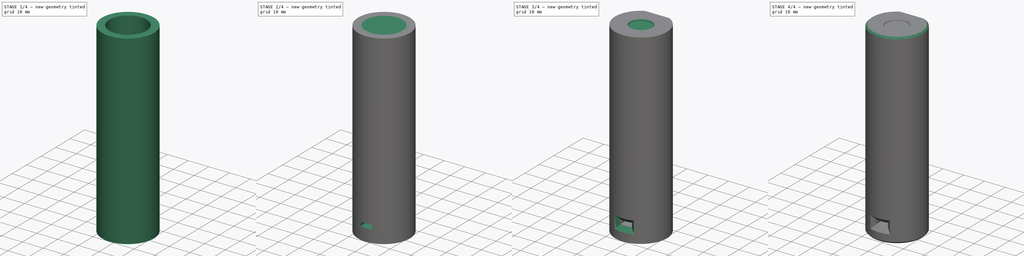
[diagram: build sequence overview — one tinted view per stage of 4, left to right]
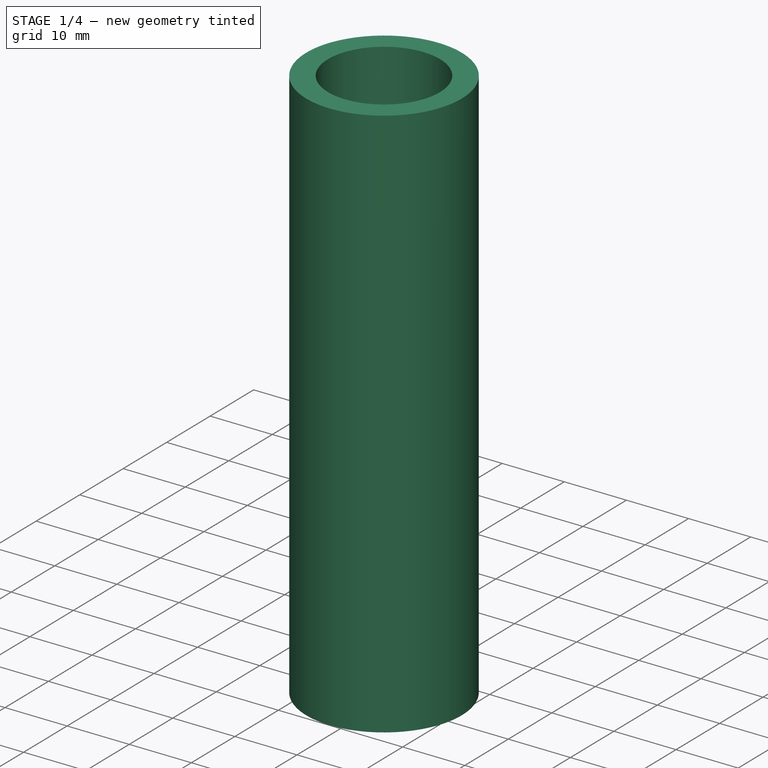
[diagram: stage 1 of 4 — iso view after this stage's code; geometry added in this stage tinted green]
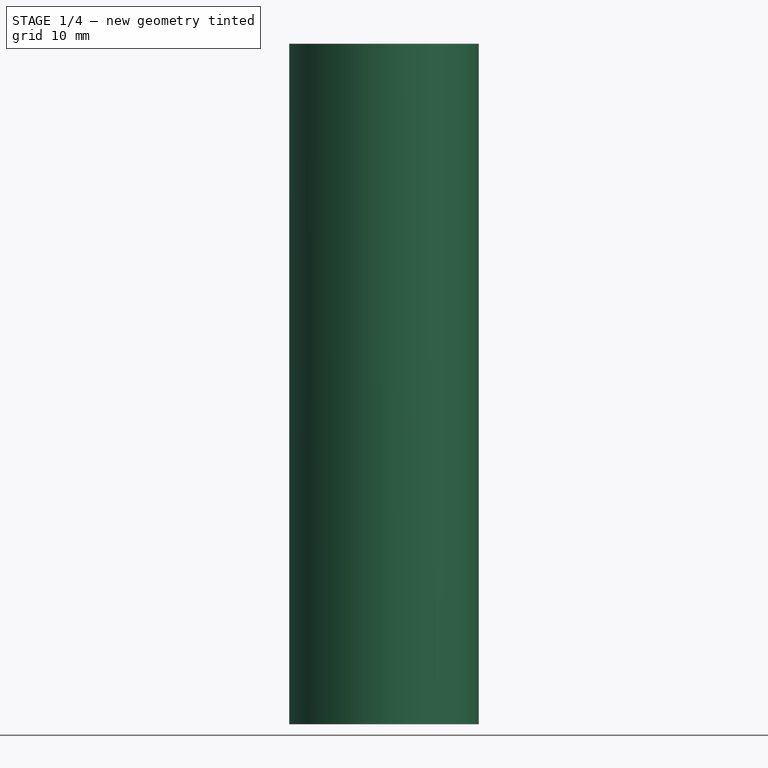
[diagram: stage 1 of 4 — front view after this stage's code; geometry added in this stage tinted green]
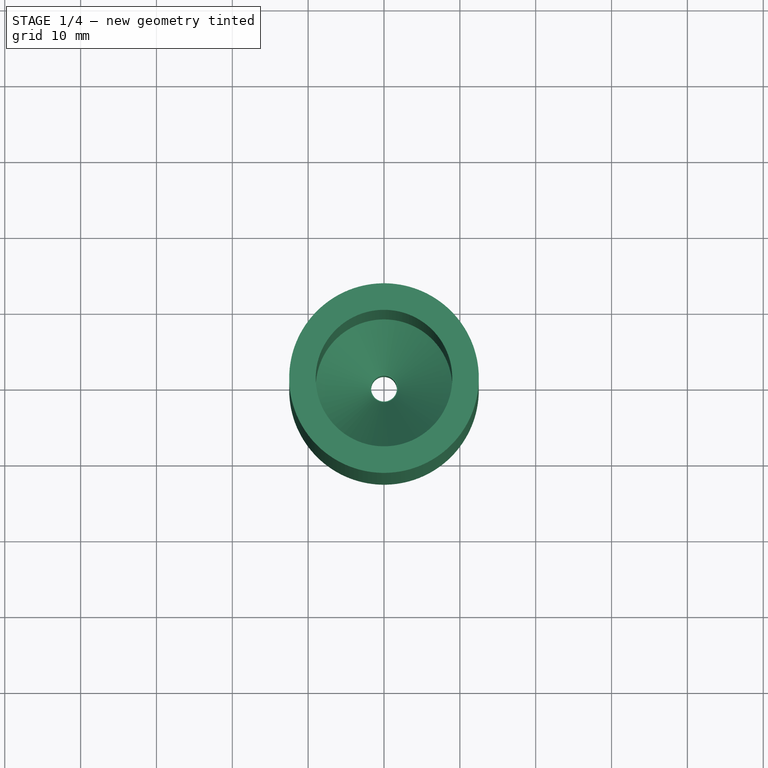
[diagram: stage 1 of 4 — top view after this stage's code; geometry added in this stage tinted green]
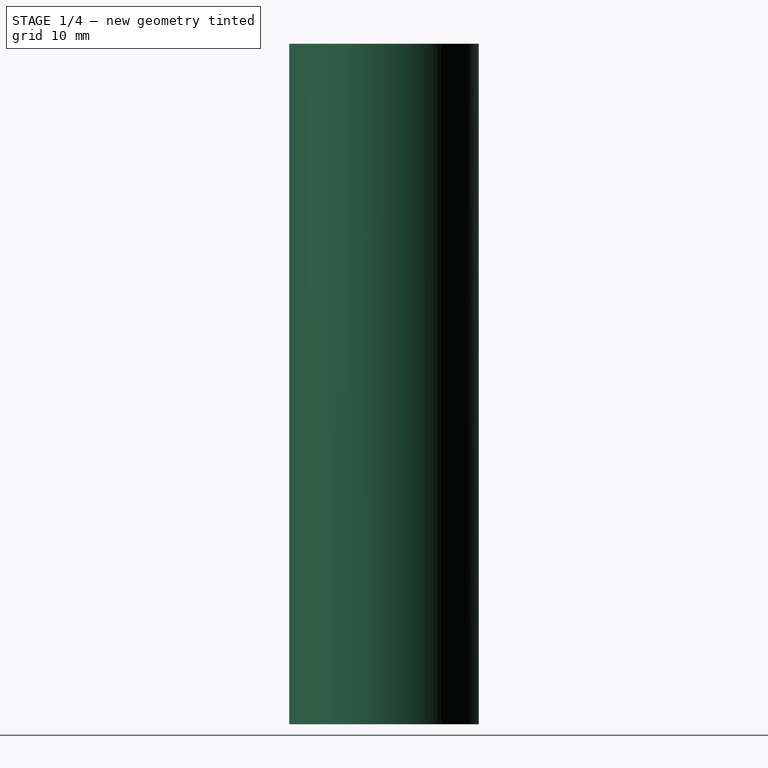
[diagram: stage 1 of 4 — right view after this stage's code; geometry added in this stage tinted green]
FCSTD DOCUMENT  (FreeCAD 0.20R29603 (Git))
Label: aux-staging-plate-foot
License: All rights reserved
LicenseURL: http://en.wikipedia.org/wiki/All_rights_reserved
objects: Sketcher::SketchObject×6, PartDesign::Chamfer×4, PartDesign::Pocket×4, PartDesign::Pad×3, PartDesign::Plane×2, PartDesign::Fillet×1, PartDesign::Hole×1, PartDesign::Body×1
note: 35 computed .brp shape members not serialized (recipe doc carries the construction recipe); baked Part::Feature solids carry a one-line shape summary decoded from their .brp

FEATURE [Sketcher::SketchObject] Sketch
  FullyConstrained = true
  MapMode = 5
  Support = -> [XY_Plane]
  sketch-geometry (2):
    g0: Circle CenterX=0 CenterY=0 CenterZ=0 NormalX=0 NormalY=0 NormalZ=1 AngleXU=0 Radius=12.5
    g1: Circle CenterX=0 CenterY=0 CenterZ=0 NormalX=0 NormalY=0 NormalZ=1 AngleXU=0 Radius=9
  constraints (4):
    c: Coincident(g0,g-1)
    c: Coincident(g1,g0)
    c: Diameter(g0) = 25
    c: Diameter(g1) = 18
FEATURE [PartDesign::Pad] Pad
  Direction = (1,1,1)
  Length = 89.72
  Length2 = 100
  Profile = -> Sketch
  Type = 0
FEATURE [Sketcher::SketchObject] Sketch001
  FullyConstrained = true
  MapMode = 5
  Support = -> [XY_Plane]
  sketch-geometry (2):
    g0: Circle CenterX=0 CenterY=0 CenterZ=0 NormalX=0 NormalY=0 NormalZ=1 AngleXU=0 Radius=1.7
    g1: Circle CenterX=0 CenterY=0 CenterZ=0 NormalX=0 NormalY=0 NormalZ=1 AngleXU=0 Radius=9
  constraints (4):
    c: Coincident(g0,g-1)
    c: Coincident(g1,g0)
    c: Diameter(g0) = 3.4
    c: Diameter(g1) = 18
FEATURE [PartDesign::Pad] Pad001
  BaseFeature = -> Pad
  Direction = (1,1,1)
  Length = 10
  Length2 = 100
  Profile = -> Sketch001
  Type = 0
FEATURE [PartDesign::Plane] DatumPlane
  AttachmentOffset = pos=(0,0,8) rot=(0,0,1;0rad)
  Length = 60
  MapMode = 5
  Placement = pos=(0,0,8) rot=(0,0,1;0rad)
  ResizeMode = 0
  Support = -> [XY_Plane]
  Width = 60
FEATURE [PartDesign::Chamfer] Chamfer
  Angle = 45
  Base = -> Pad001 [Edge7]
  BaseFeature = -> Pad001
  ChamferType = 0
  FlipDirection = false
  Size = 7.2
  Size2 = 1
  SupportTransform = false
  UseAllEdges = false
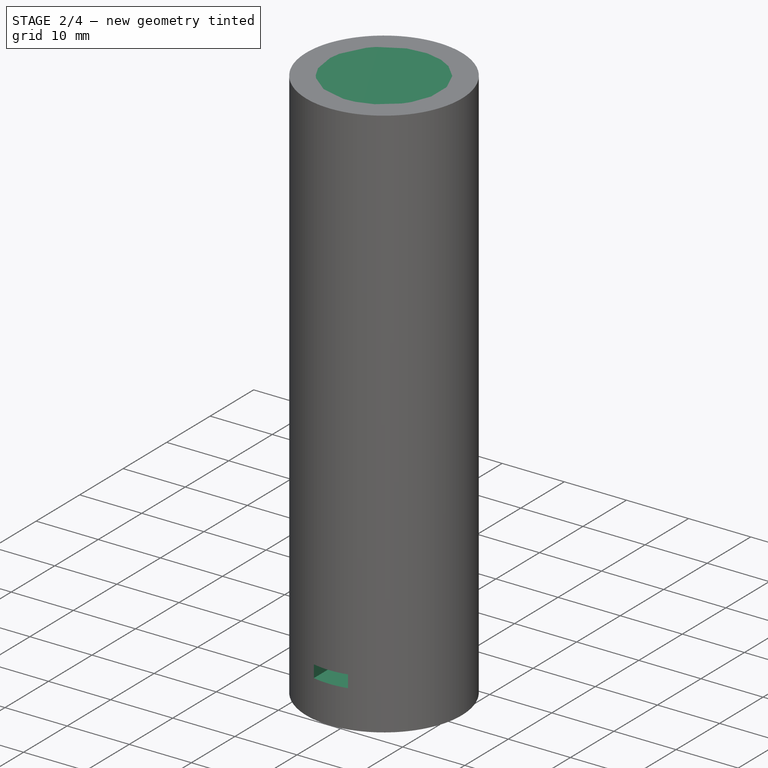
[diagram: stage 2 of 4 — iso view after this stage's code; geometry added in this stage tinted green]
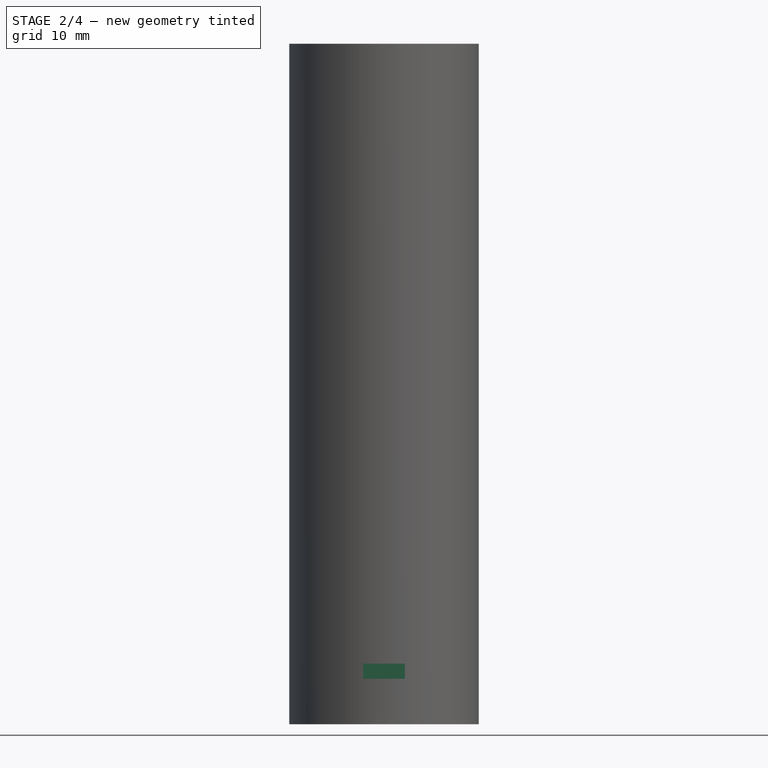
[diagram: stage 2 of 4 — front view after this stage's code; geometry added in this stage tinted green]
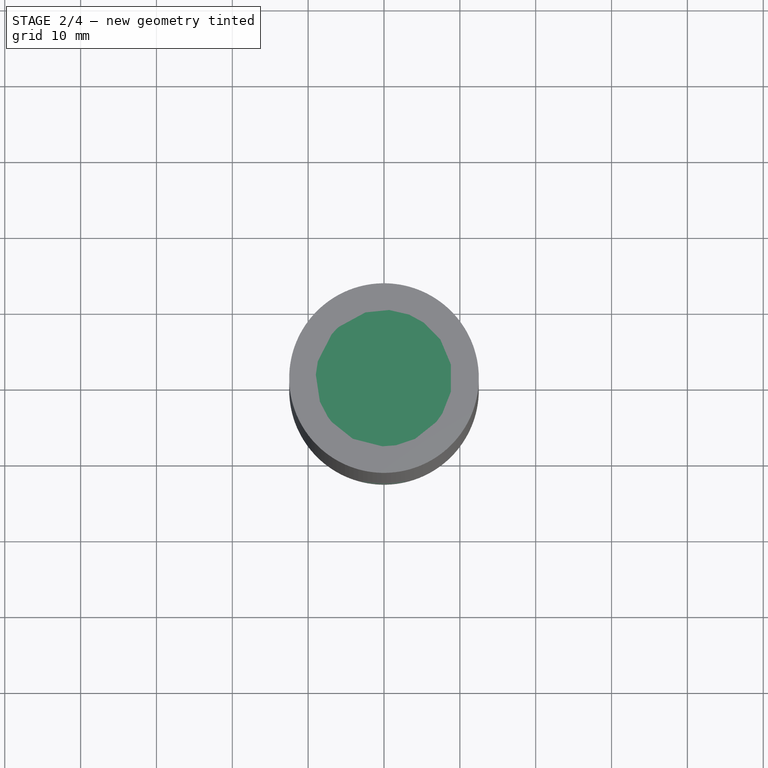
[diagram: stage 2 of 4 — top view after this stage's code; geometry added in this stage tinted green]
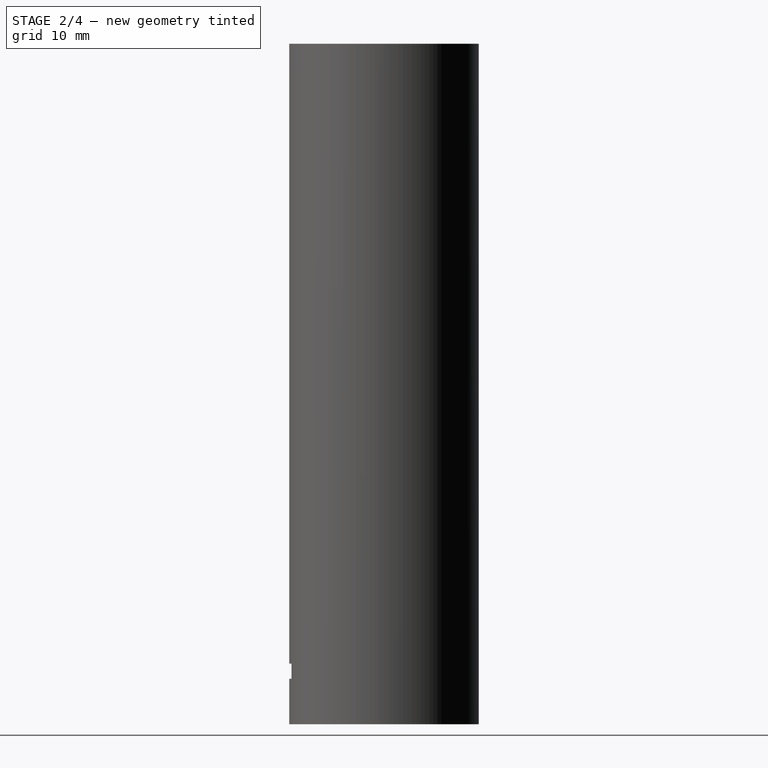
[diagram: stage 2 of 4 — right view after this stage's code; geometry added in this stage tinted green]
FEATURE [Sketcher::SketchObject] Sketch002
  FullyConstrained = true
  MapMode = 5
  Placement = pos=(0,0,8) rot=(0,0,1;0rad)
  Support = -> [DatumPlane]
  sketch-geometry (12):
    g0: LineSegment StartX=1.61658 StartY=2.8 StartZ=0 EndX=-1.61658 EndY=2.8 EndZ=0
    g1: LineSegment StartX=-1.61658 StartY=2.8 StartZ=0 EndX=-3.23316 EndY=4e-16 EndZ=0
    g2: LineSegment StartX=-3.23316 StartY=4e-16 StartZ=0 EndX=-1.61658 EndY=-2.8 EndZ=0
    g3: LineSegment StartX=-1.61658 StartY=-2.8 StartZ=0 EndX=1.61658 EndY=-2.8 EndZ=0
    g4: LineSegment StartX=1.61658 StartY=-2.8 StartZ=0 EndX=3.23316 EndY=0 EndZ=0
    g5: LineSegment StartX=3.23316 StartY=-2e-16 StartZ=0 EndX=1.61658 EndY=2.8 EndZ=0
    g6: Circle CenterX=0 CenterY=0 CenterZ=0 NormalX=0 NormalY=0 NormalZ=1 AngleXU=0 Radius=3.23316
    g7: LineSegment StartX=2.75 StartY=2.8 StartZ=0 EndX=2.75 EndY=-22.2 EndZ=0
    g8: LineSegment StartX=2.75 StartY=-22.2 StartZ=0 EndX=-2.75 EndY=-22.2 EndZ=0
    g9: LineSegment StartX=-2.75 StartY=-22.2 StartZ=0 EndX=-2.75 EndY=2.8 EndZ=0
    g10: LineSegment StartX=-2.75 StartY=2.8 StartZ=0 EndX=2.75 EndY=2.8 EndZ=0
    g11: GeomPoint X=0 Y=-9.7 Z=0
  constraints (29):
    c: Coincident(g0,g1)
    c: Coincident(g1,g2)
    c: Coincident(g2,g3)
    c: Coincident(g3,g4)
    c: Coincident(g4,g5)
    c: Coincident(g5,g0)
    c: Equal(g0, g1-g5) x5
    c: PointOnObject(g0,g6)
    c: PointOnObject(g1,g6)
    c: PointOnObject(g2,g6)
    c: PointOnObject(g3,g6)
    c: PointOnObject(g4,g6)
    c: PointOnObject(g5,g6)
    c: Coincident(g6,g-1)
    c: Horizontal(g0)
    c: DistanceY(g2,g0) = 5.6
    c: Coincident(g7,g8)
    c: Coincident(g8,g9)
    c: Coincident(g9,g10)
    c: Coincident(g10,g7)
    c: Horizontal(g8)
    c: Horizontal(g10)
    c: Vertical(g7)
    c: Vertical(g9)
    c: Symmetric(g8,g7,g11)
    c: PointOnObject(g11,g-2)
    c: DistanceX(g10,g10) = 5.5
    c: PointOnObject(g7,g0)
    c: DistanceY(g7,g7) = 25
FEATURE [PartDesign::Pocket] Pocket
  BaseFeature = -> Chamfer
  Direction = (0,0,-1)
  Length = 2
  Length2 = 1
  Profile = -> Sketch002
  ReferenceAxis = -> Sketch002 [N_Axis]
  Type = 0
FEATURE [PartDesign::Pad] Pad002
  BaseFeature = -> Pocket
  Direction = (0,0,1)
  Length = 5
  Length2 = 10
  Profile = -> Pocket [Edge3]
  Reversed = true
  Type = 0
FEATURE [PartDesign::Chamfer] Chamfer001
  Angle = 45
  Base = -> Pad002 [Edge3]
  BaseFeature = -> Pad002
  ChamferType = 0
  FlipDirection = false
  Size = 9
  Size2 = 1
  SupportTransform = false
  UseAllEdges = false
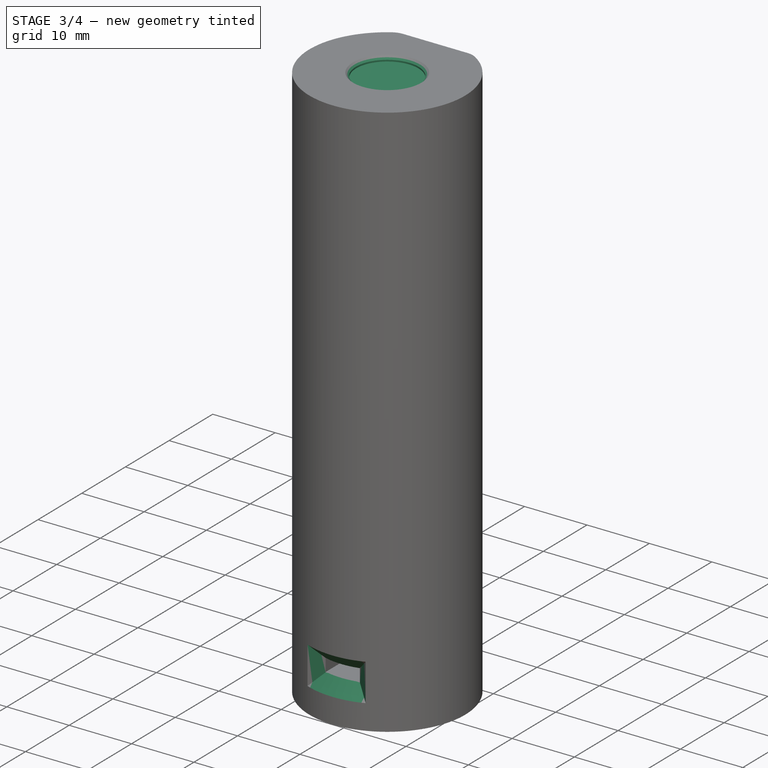
[diagram: stage 3 of 4 — iso view after this stage's code; geometry added in this stage tinted green]
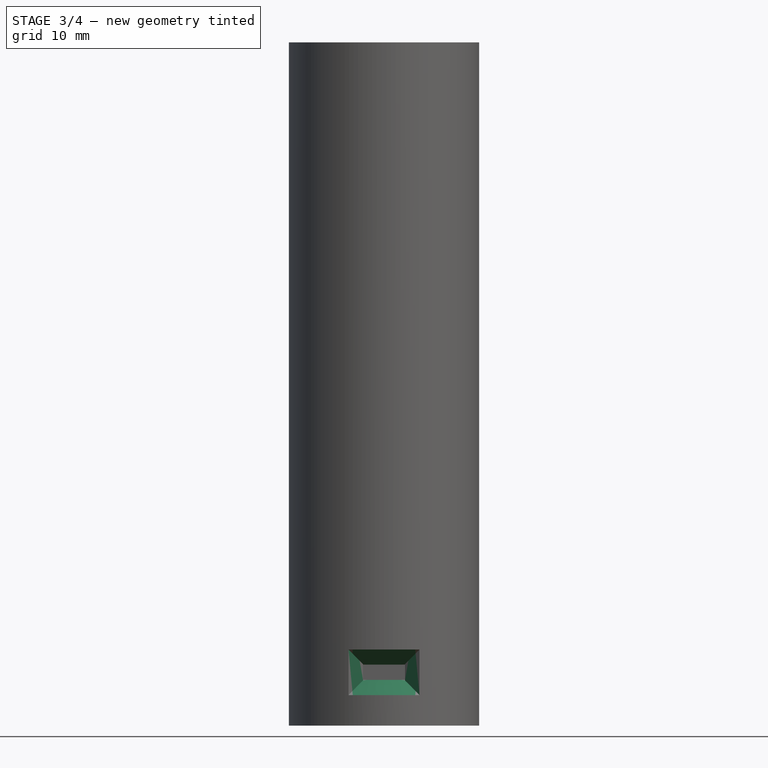
[diagram: stage 3 of 4 — front view after this stage's code; geometry added in this stage tinted green]
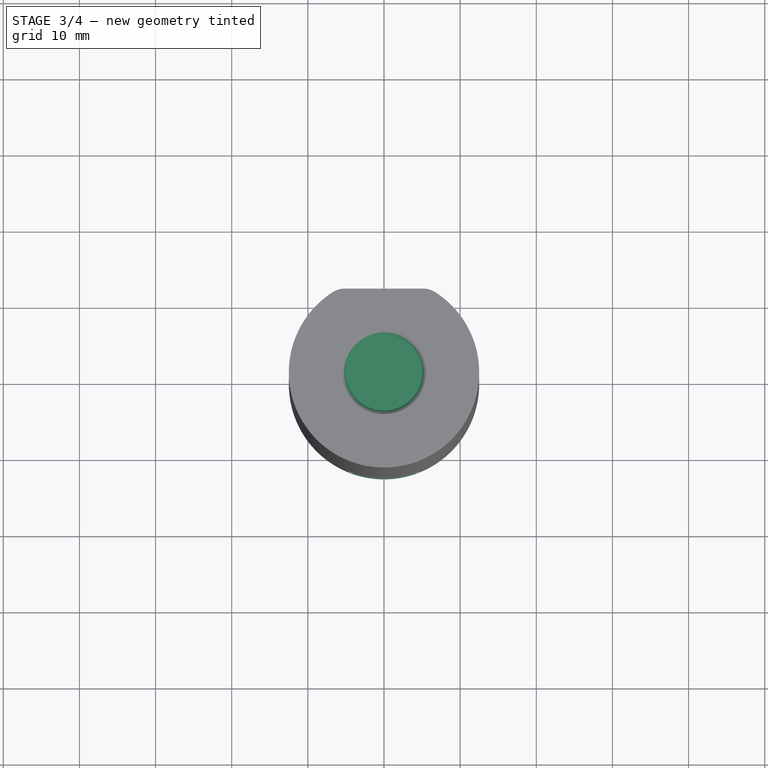
[diagram: stage 3 of 4 — top view after this stage's code; geometry added in this stage tinted green]
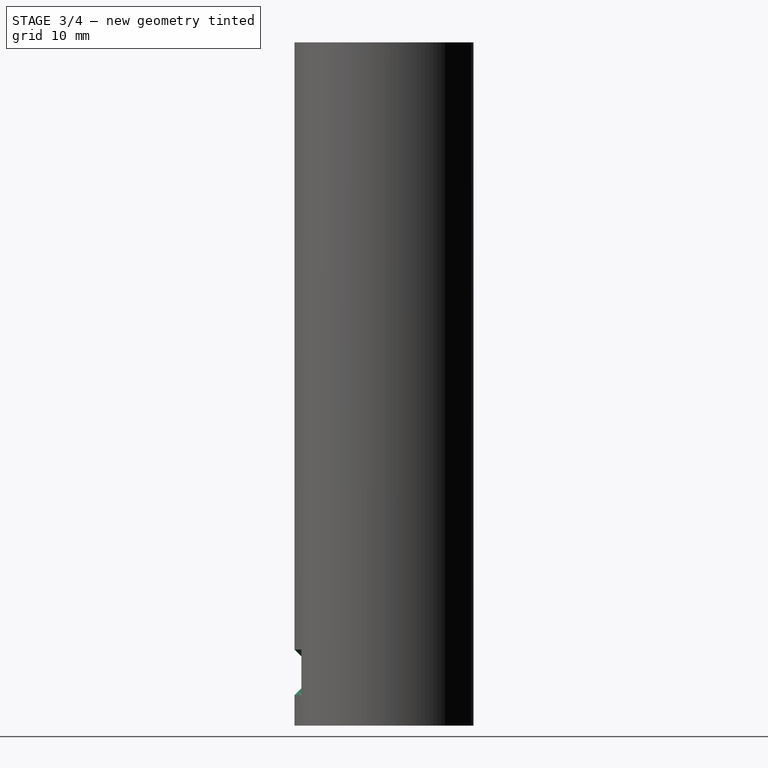
[diagram: stage 3 of 4 — right view after this stage's code; geometry added in this stage tinted green]
FEATURE [PartDesign::Chamfer] Chamfer002
  Angle = 45
  Base = -> Chamfer001 [Edge29,Edge12,Edge21,Edge22,Edge15]
  BaseFeature = -> Chamfer001
  ChamferType = 0
  FlipDirection = false
  Size = 2
  Size2 = 1
  SupportTransform = false
  UseAllEdges = false
FEATURE [Sketcher::SketchObject] Sketch003
  FullyConstrained = true
  MapMode = 5
  Support = -> [XY_Plane]
  sketch-geometry (5):
    g0: LineSegment StartX=-7.5 StartY=14 StartZ=0 EndX=-7.5 EndY=11 EndZ=0
    g1: LineSegment StartX=-7.5 StartY=11 StartZ=0 EndX=7.5 EndY=11 EndZ=0
    g2: LineSegment StartX=7.5 StartY=11 StartZ=0 EndX=7.5 EndY=14 EndZ=0
    g3: LineSegment StartX=7.5 StartY=14 StartZ=0 EndX=-7.5 EndY=14 EndZ=0
    g4: GeomPoint X=0 Y=12.5 Z=0
  constraints (13):
    c: Coincident(g0,g1)
    c: Coincident(g1,g2)
    c: Coincident(g2,g3)
    c: Coincident(g3,g0)
    c: Horizontal(g1)
    c: Horizontal(g3)
    c: Vertical(g0)
    c: Vertical(g2)
    c: Symmetric(g1,g0,g4)
    c: PointOnObject(g4,g-2)
    c: DistanceY(g-1,g1) = 11
    c: DistanceX(g3,g3) = 15
    c: DistanceY(g0,g0) = 3
FEATURE [PartDesign::Pocket] Pocket001
  BaseFeature = -> Chamfer002
  Direction = (0,0,-1)
  Length = 5
  Length2 = 5
  Profile = -> Sketch003
  ReferenceAxis = -> Sketch003 [N_Axis]
  Reversed = true
  Type = 1
FEATURE [PartDesign::Fillet] Fillet
  Base = -> Pocket001 [Edge37,Edge30]
  BaseFeature = -> Pocket001
  Radius = 3
  SupportTransform = false
  UseAllEdges = false
FEATURE [PartDesign::Hole] Hole
  BaseFeature = -> Fillet
  CustomThreadClearance = 0
  Depth = 0.75
  DepthType = 0
  Diameter = 10
  DrillForDepth = false
  DrillPoint = 0
  DrillPointAngle = 118
  HoleCutCountersinkAngle = 90
  HoleCutCustomValues = false
  HoleCutDepth = 0.74
  HoleCutDiameter = 11
  HoleCutType = 2
  ModelThread = false
  Profile = -> Fillet [Edge13]
  Tapered = false
  TaperedAngle = 90
  ThreadClass = 0
  ThreadDepth = 0.75
  ThreadDepthType = 0
  ThreadDirection = 0
  ThreadFit = 0
  ThreadSize = 0
  ThreadType = 0
  Threaded = false
  UseCustomThreadClearance = false
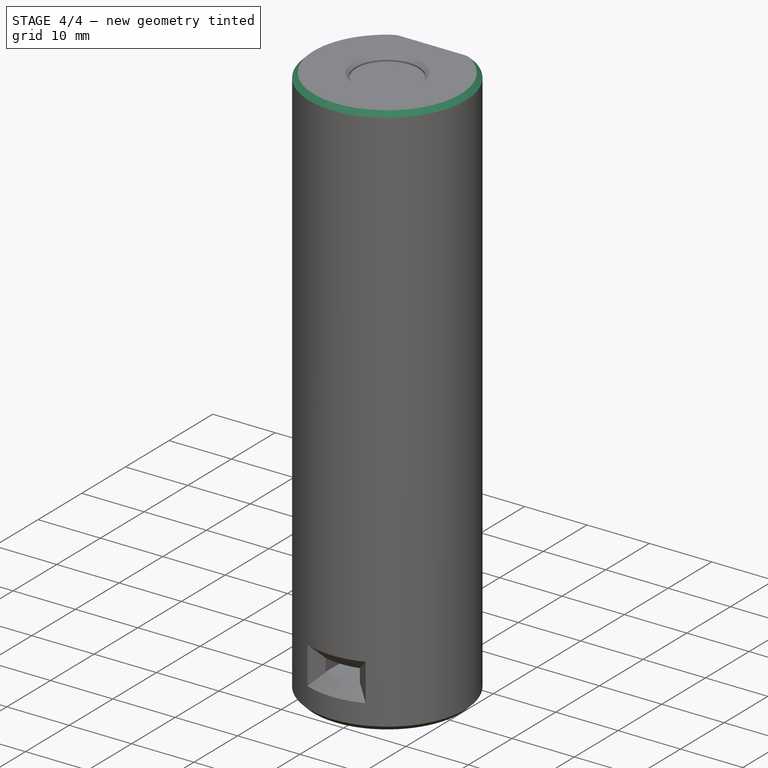
[diagram: stage 4 of 4 — iso view after this stage's code; geometry added in this stage tinted green]
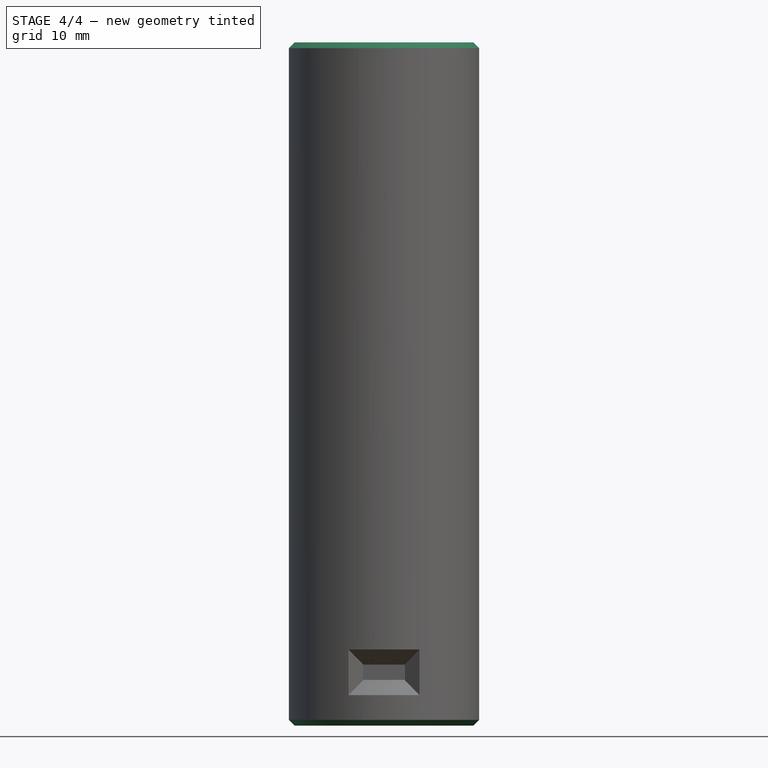
[diagram: stage 4 of 4 — front view after this stage's code; geometry added in this stage tinted green]
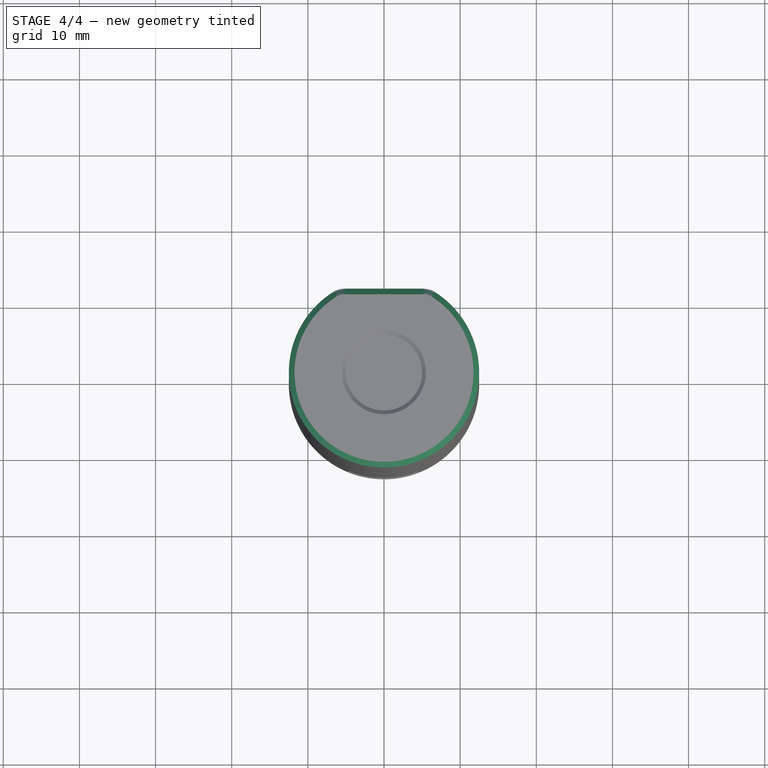
[diagram: stage 4 of 4 — top view after this stage's code; geometry added in this stage tinted green]
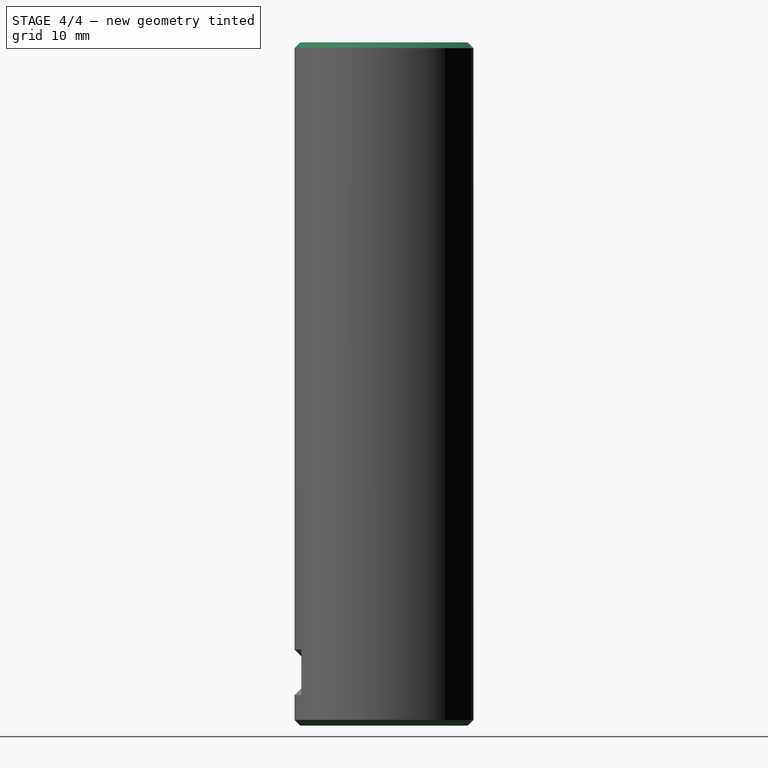
[diagram: stage 4 of 4 — right view after this stage's code; geometry added in this stage tinted green]
FEATURE [PartDesign::Plane] DatumPlane001
  Length = 60
  MapMode = 5
  Placement = pos=(0,0,8) rot=(1,0,0;3.14159rad)
  ResizeMode = 0
  Support = -> [Hole]
  Width = 60
FEATURE [Sketcher::SketchObject] Sketch004
  ExternalGeometry = -> [Hole]
  FullyConstrained = true
  MapMode = 5
  Placement = pos=(0,0,8) rot=(1,0,0;3.14159rad)
  Support = -> [DatumPlane001]
  sketch-geometry (5):
    g0: LineSegment StartX=-1.7 StartY=-1.7 StartZ=0 EndX=-1.7 EndY=1.7 EndZ=0
    g1: LineSegment StartX=-1.7 StartY=1.7 StartZ=0 EndX=1.7 EndY=1.7 EndZ=0
    g2: LineSegment StartX=1.7 StartY=1.7 StartZ=0 EndX=1.7 EndY=-1.7 EndZ=0
    g3: LineSegment StartX=1.7 StartY=-1.7 StartZ=0 EndX=-1.7 EndY=-1.7 EndZ=0
    g4: GeomPoint X=0 Y=0 Z=0
  constraints (12):
    c: Coincident(g0,g1)
    c: Coincident(g1,g2)
    c: Coincident(g2,g3)
    c: Coincident(g3,g0)
    c: Horizontal(g1)
    c: Horizontal(g3)
    c: Vertical(g0)
    c: Vertical(g2)
    c: Symmetric(g1,g0,g4)
    c: Coincident(g4,g-1)
    c: Tangent(g-3,g1)
    c: Tangent(g0,g-3)
FEATURE [PartDesign::Pocket] Pocket002
  BaseFeature = -> Hole
  Direction = (0,0,1)
  Length = 0.8
  Length2 = 5
  Profile = -> Sketch004
  ReferenceAxis = -> Sketch004 [N_Axis]
  Type = 0
FEATURE [Sketcher::SketchObject] Sketch005
  FullyConstrained = true
  MapMode = 5
  Placement = pos=(0,0,8) rot=(1,0,0;3.14159rad)
  Support = -> [DatumPlane001]
  sketch-geometry (5):
    g0: LineSegment StartX=2.75 StartY=-1.7 StartZ=0 EndX=2.75 EndY=1.7 EndZ=0
    g1: LineSegment StartX=2.75 StartY=1.7 StartZ=0 EndX=-2.75 EndY=1.7 EndZ=0
    g2: LineSegment StartX=-2.75 StartY=1.7 StartZ=0 EndX=-2.75 EndY=-1.7 EndZ=0
    g3: LineSegment StartX=-2.75 StartY=-1.7 StartZ=0 EndX=2.75 EndY=-1.7 EndZ=0
    g4: GeomPoint X=0 Y=0 Z=0
  constraints (12):
    c: Coincident(g0,g1)
    c: Coincident(g1,g2)
    c: Coincident(g2,g3)
    c: Coincident(g3,g0)
    c: Horizontal(g1)
    c: Horizontal(g3)
    c: Vertical(g0)
    c: Vertical(g2)
    c: Symmetric(g1,g0,g4)
    c: Coincident(g4,g-1)
    c: DistanceY(g2,g2) = 3.4
    c: DistanceX(g1,g1) = 5.5
FEATURE [PartDesign::Pocket] Pocket003
  BaseFeature = -> Pocket002
  Direction = (0,0,1)
  Length = 0.4
  Length2 = 5
  Profile = -> Sketch005
  ReferenceAxis = -> Sketch005 [N_Axis]
  Type = 0
FEATURE [PartDesign::Chamfer] Chamfer003
  Angle = 45
  Base = -> Pocket003 [Face2,Face5]
  BaseFeature = -> Pocket003
  ChamferType = 0
  FlipDirection = false
  Size = 0.75
  Size2 = 1
  SupportTransform = false
  UseAllEdges = false
FEATURE [PartDesign::Body] Body
  Group = -> [Sketch,Pad,Sketch001,Pad001,DatumPlane,Chamfer,Sketch002,Pocket,Pad002,Chamfer001,Chamfer002,Sketch003,Pocket001,Fillet,Hole,DatumPlane001,Sketch004,Pocket002,Sketch005,Pocket003,Chamfer003]
  Origin = -> Origin
  Tip = -> Chamfer003
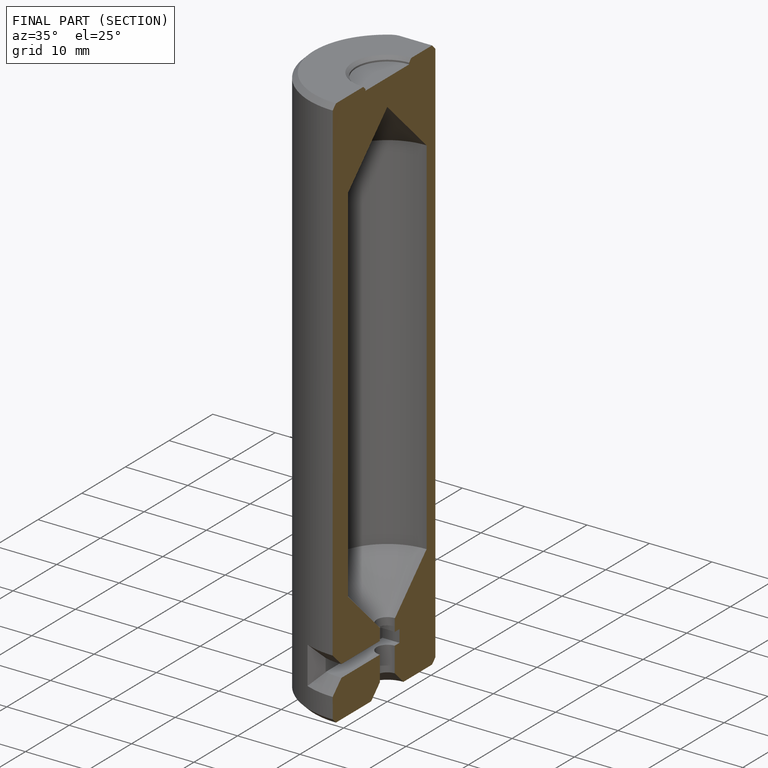
[diagram: finished part — half-section view (interior)]
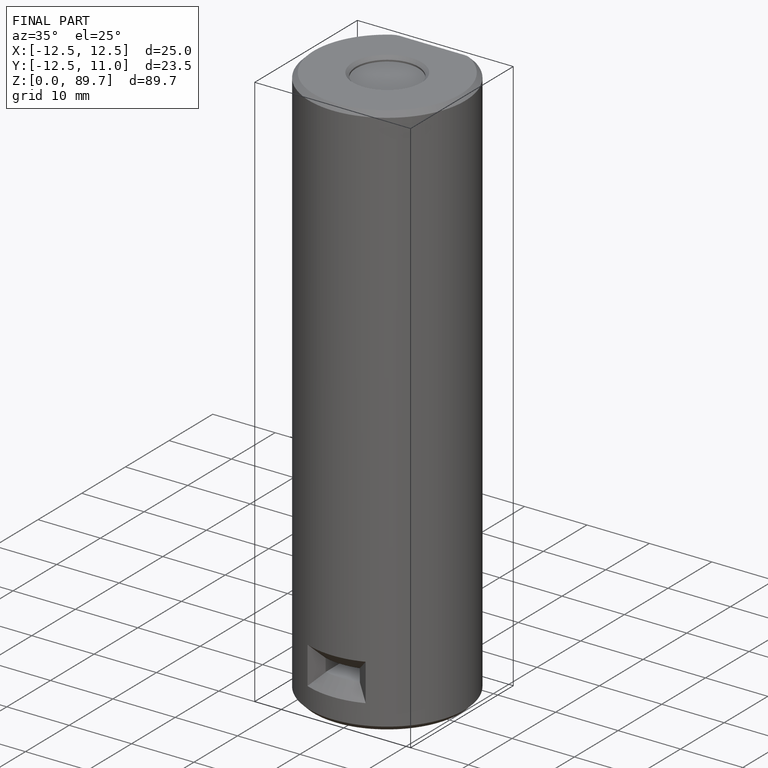
[diagram: finished part — iso view with bounding-box wireframe]
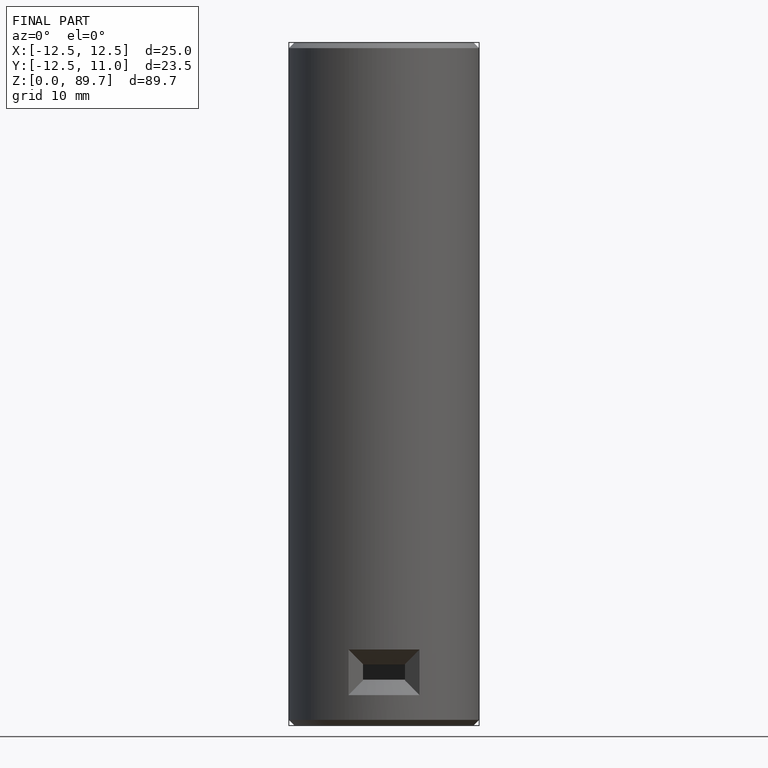
[diagram: finished part — front view with bounding-box wireframe]
